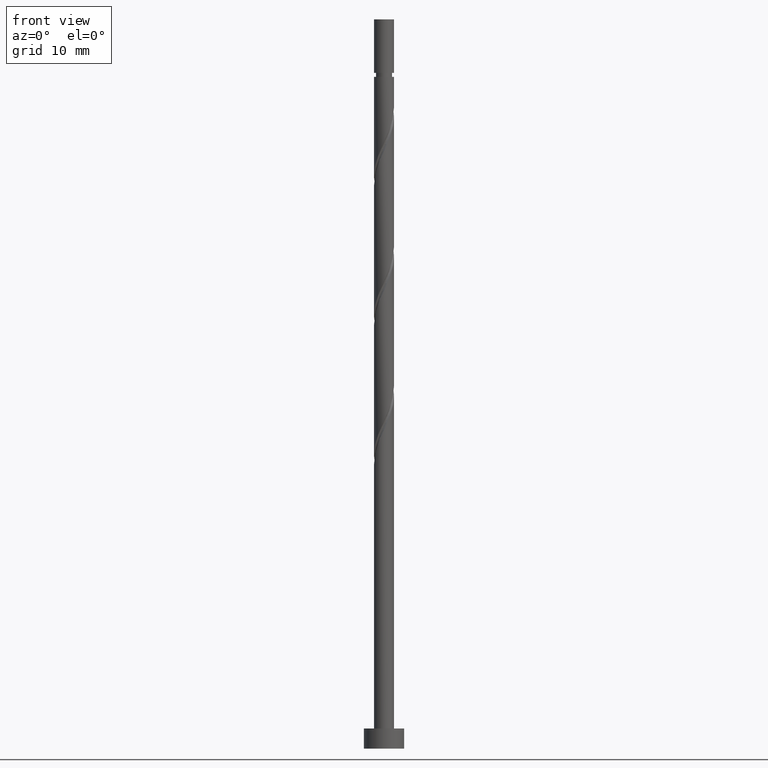
[diagram: clean part render]
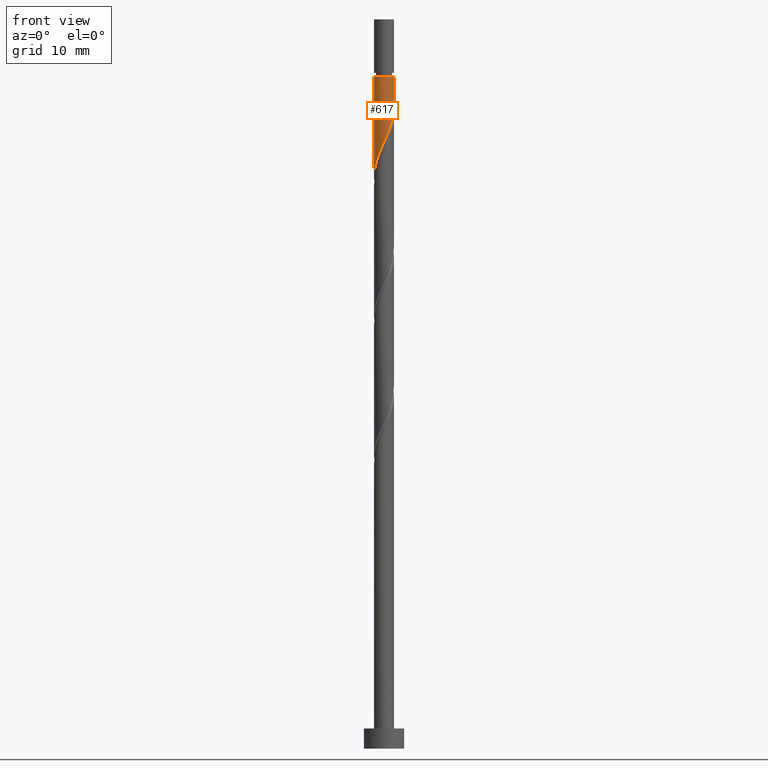
[diagram: same view with one face highlighted and labeled with its STEP entity id]
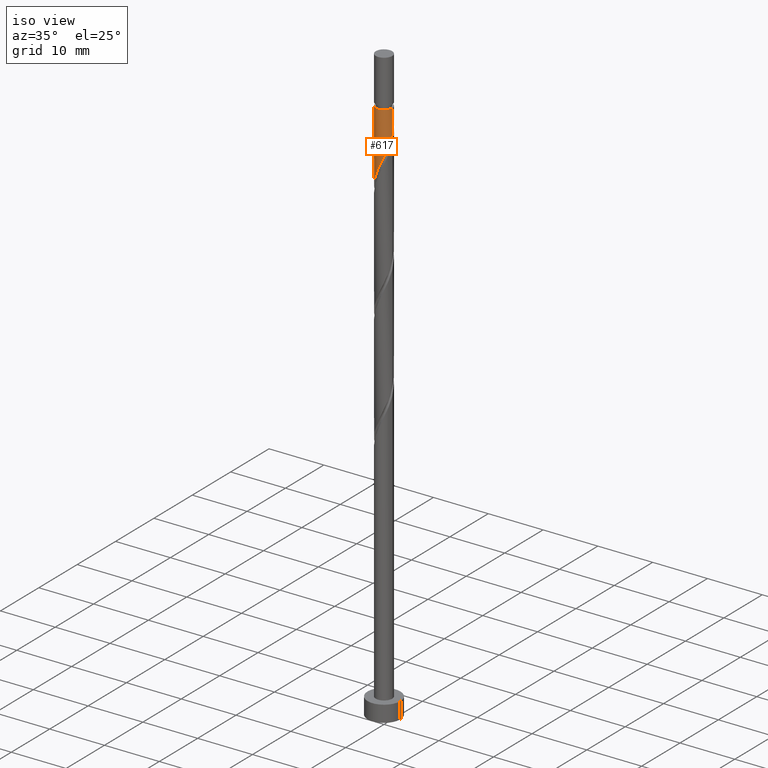
[diagram: same view with one face highlighted and labeled with its STEP entity id]
A machine part, front view. The second image highlights one B-rep face of the part: STEP entity #617.
A second angle (iso view) of the same face is appended — the face is thin or edge-on in the first view.
In plain terms, the highlighted cylindrical surface (edge-blend (fillet) strip) has radius 1.5 mm, axis along (-0, -0, -1).
Its self-contained STEP definition (entity closure, byte-faithful):
#32 = CARTESIAN_POINT ( 'NONE',  ( -0.06567110385491777003, -1.517277158506823431, 90.51775725956399299 ) ) ;
#39 = VERTEX_POINT ( 'NONE', #1514 ) ;
#84 = LINE ( 'NONE', #1053, #204 ) ;
#101 = EDGE_CURVE ( 'NONE', #1009, #1147, #84, .T. ) ;
#149 = CARTESIAN_POINT ( 'NONE',  ( 0.6225557971272867031, -1.364706664255440183, 92.08025725956400720 ) ) ;
#204 = VECTOR ( 'NONE', #329, 1000.000000000000000 ) ;
#218 =( BOUNDED_CURVE ( )  B_SPLINE_CURVE ( 2, ( #379, #988, #1478, #1246, #863, #1362, #271, #748, #149, #635, #1119, #32, #781, #1054, #693, #798, #1279, #1047, #1158, #1287, #919, #542, #560 ),
 .UNSPECIFIED., .F., .T. ) 
 B_SPLINE_CURVE_WITH_KNOTS ( ( 3, 2, 2, 2, 2, 2, 2, 2, 2, 2, 2, 3 ),
 ( 0.3045322023138551382, 0.3125000000000000000, 0.3250000000000000111, 0.3375000000000000222, 0.3499999999999999778, 0.3624999999999999889, 0.3750000000000000000, 0.3875000000000000111, 0.4000000000000000222, 0.4124999999999999778, 0.4249999999999999889, 0.4295322023138549716 ),
 .UNSPECIFIED. ) 
 CURVE ( )  GEOMETRIC_REPRESENTATION_ITEM ( )  RATIONAL_B_SPLINE_CURVE ( ( 0.9039174447099322940, 0.9019565955404615920, 0.9090909090909099488, 0.8978984914501261239, 0.9090909090909099488, 0.8978984914501261239, 0.9090909090909099488, 0.8978984914501261239, 0.9090909090909099488, 0.8978984914501261239, 0.9090909090909099488, 0.8978984914501261239, 0.9090909090909099488, 0.8978984914501261239, 0.9090909090909099488, 0.8978984914501261239, 0.9090909090909099488, 0.8978984914501261239, 0.9090909090909099488, 0.8978984914501261239, 0.9090909090909099488, 0.9050328050005747027, 0.9039174447099324050 ) ) 
 REPRESENTATION_ITEM ( '' )  );
#248 = DIRECTION ( 'NONE',  ( -1.000000000000000000, 0.000000000000000000, 0.000000000000000000 ) ) ;
#271 = CARTESIAN_POINT ( 'NONE',  ( 1.013803299206906150, -1.105532844612584720, 93.12192392623063597 ) ) ;
#329 = DIRECTION ( 'NONE',  ( -0.000000000000000000, -0.000000000000000000, -1.000000000000000000 ) ) ;
#378 = ORIENTED_EDGE ( 'NONE', *, *, #742, .F. ) ;
#379 = CARTESIAN_POINT ( 'NONE',  ( 1.500000000000000666, 1.064510297607615183E-15, 95.87005970103426478 ) ) ;
#445 = VECTOR ( 'NONE', #577, 1000.000000000000000 ) ;
#515 = CARTESIAN_POINT ( 'NONE',  ( -1.500000000000000000, 0.000000000000000000, 100.4135905928973074 ) ) ;
#535 = CIRCLE ( 'NONE', #1223, 1.500000000000000000 ) ;
#542 = CARTESIAN_POINT ( 'NONE',  ( -1.499999999999999778, -0.08546060616965310552, 85.64290412357483717 ) ) ;
#560 = CARTESIAN_POINT ( 'NONE',  ( -1.500000000000000444, -1.259420633789291334E-15, 85.45339303436759337 ) ) ;
#577 = DIRECTION ( 'NONE',  ( -0.000000000000000000, -0.000000000000000000, -1.000000000000000000 ) ) ;
#617 = ADVANCED_FACE ( 'NONE', ( #1221 ), #1197, .T. ) ;
#624 = ORIENTED_EDGE ( 'NONE', *, *, #101, .T. ) ;
#635 = CARTESIAN_POINT ( 'NONE',  ( 0.4064074959020239630, -1.463309815754240351, 91.55942392623062176 ) ) ;
#693 = CARTESIAN_POINT ( 'NONE',  ( -0.7381417674387925620, -1.305812670777220186, 88.95525725956397878 ) ) ;
#718 = DIRECTION ( 'NONE',  ( -1.000000000000000000, 0.000000000000000000, 0.000000000000000000 ) ) ;
#742 = EDGE_CURVE ( 'NONE', #39, #1147, #218, .T. ) ;
#748 = CARTESIAN_POINT ( 'NONE',  ( 0.8387040983525493321, -1.266103512756638905, 92.60109059289730737 ) ) ;
#781 = CARTESIAN_POINT ( 'NONE',  ( -0.2984962311319861450, -1.470000000000000639, 89.99692392623066439 ) ) ;
#798 = CARTESIAN_POINT ( 'NONE',  ( -0.9449621764685304237, -1.188902500061262968, 88.43442392623066439 ) ) ;
#844 = DIRECTION ( 'NONE',  ( -0.000000000000000000, -0.000000000000000000, -1.000000000000000000 ) ) ;
#863 = CARTESIAN_POINT ( 'NONE',  ( 1.305812670777220186, -0.7381417674387927841, 94.16359059289730737 ) ) ;
#865 = EDGE_CURVE ( 'NONE', #1192, #1009, #535, .T. ) ;
#912 = AXIS2_PLACEMENT_3D ( 'NONE', #1437, #1562, #248 ) ;
#919 = CARTESIAN_POINT ( 'NONE',  ( -1.490293487130532224, -0.1703681960235532145, 85.83025725956399299 ) ) ;
#988 = CARTESIAN_POINT ( 'NONE',  ( 1.500000000000000444, -0.1507556722888814538, 95.53575512562640881 ) ) ;
#1009 = VERTEX_POINT ( 'NONE', #515 ) ;
#1047 = CARTESIAN_POINT ( 'NONE',  ( -1.266103512756638905, -0.8387040983525493321, 87.39275725956395036 ) ) ;
#1053 = CARTESIAN_POINT ( 'NONE',  ( -1.500000000000000222, 0.000000000000000000, 109.0000000000000000 ) ) ;
#1054 = CARTESIAN_POINT ( 'NONE',  ( -0.5313213584090544783, -1.422722841493176738, 89.47609059289730737 ) ) ;
#1080 = CARTESIAN_POINT ( 'NONE',  ( 1.500000000000000222, 1.836970198721030181E-16, 109.0000000000000000 ) ) ;
#1119 = CARTESIAN_POINT ( 'NONE',  ( 0.1703681960235531034, -1.490293487130532224, 91.03859059289733580 ) ) ;
#1138 = CARTESIAN_POINT ( 'NONE',  ( 1.500000000000000000, 1.836970198721030181E-16, 100.4135905928973074 ) ) ;
#1147 = VERTEX_POINT ( 'NONE', #1470 ) ;
#1157 = EDGE_LOOP ( 'NONE', ( #1283, #1278, #624, #378 ) ) ;
#1158 = CARTESIAN_POINT ( 'NONE',  ( -1.364706664255440183, -0.6225557971272867031, 86.87192392623063597 ) ) ;
#1192 = VERTEX_POINT ( 'NONE', #1138 ) ;
#1197 = CYLINDRICAL_SURFACE ( 'NONE', #912, 1.500000000000000222 ) ;
#1221 = FACE_OUTER_BOUND ( 'NONE', #1157, .T. ) ;
#1223 = AXIS2_PLACEMENT_3D ( 'NONE', #1460, #844, #718 ) ;
#1246 = CARTESIAN_POINT ( 'NONE',  ( 1.422722841493176738, -0.5313213584090545893, 94.68442392623066439 ) ) ;
#1278 = ORIENTED_EDGE ( 'NONE', *, *, #865, .T. ) ;
#1279 = CARTESIAN_POINT ( 'NONE',  ( -1.105532844612584720, -1.013803299206906150, 87.91359059289733580 ) ) ;
#1283 = ORIENTED_EDGE ( 'NONE', *, *, #1477, .F. ) ;
#1287 = CARTESIAN_POINT ( 'NONE',  ( -1.463309815754240351, -0.4064074959020240740, 86.35109059289730737 ) ) ;
#1313 = LINE ( 'NONE', #1080, #445 ) ;
#1362 = CARTESIAN_POINT ( 'NONE',  ( 1.188902500061262968, -0.9449621764685304237, 93.64275725956396457 ) ) ;
#1437 = CARTESIAN_POINT ( 'NONE',  ( 0.000000000000000000, 0.000000000000000000, 109.0000000000000000 ) ) ;
#1460 = CARTESIAN_POINT ( 'NONE',  ( 0.000000000000000000, 0.000000000000000000, 100.4135905928973074 ) ) ;
#1470 = CARTESIAN_POINT ( 'NONE',  ( -1.500000000000000666, -1.259420633789291334E-15, 85.45339303436759337 ) ) ;
#1477 = EDGE_CURVE ( 'NONE', #1192, #39, #1313, .T. ) ;
#1478 = CARTESIAN_POINT ( 'NONE',  ( 1.470000000000000639, -0.2984962311319863115, 95.20525725956397878 ) ) ;
#1514 = CARTESIAN_POINT ( 'NONE',  ( 1.500000000000000666, 1.064510297607615183E-15, 95.87005970103426478 ) ) ;
#1562 = DIRECTION ( 'NONE',  ( -0.000000000000000000, -0.000000000000000000, -1.000000000000000000 ) ) ;